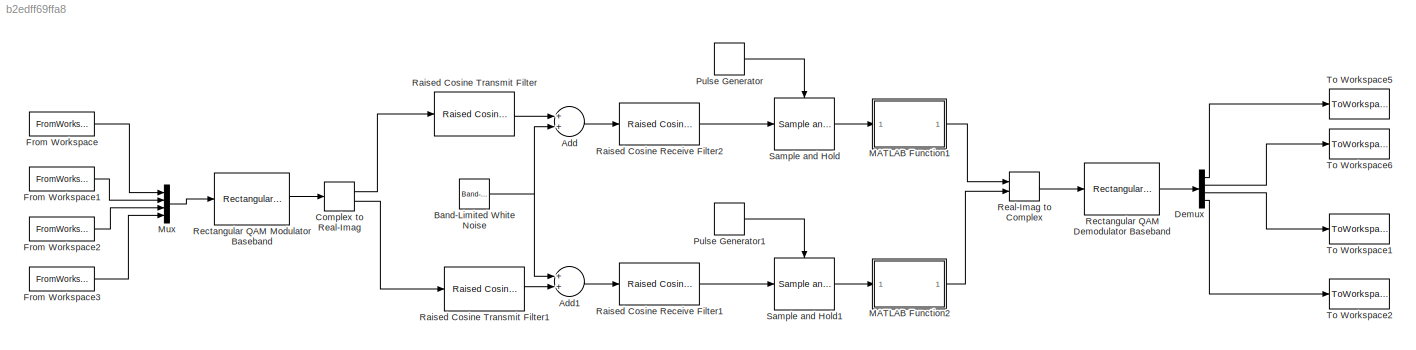
MODEL slx_b2edff69ffa8
KIND model
CONFIG AbsTol = auto
CONFIG EnableMultiTasking = off
CONFIG FixedStep = auto
CONFIG MaxStep = auto
CONFIG MinStep = auto
CONFIG RelTol = 1e-3
CONFIG SampleTimeConstraint = Unconstrained
CONFIG Solver = VariableStepAuto
CONFIG SolverName = VariableStepAuto
CONFIG StartTime = 0.0
CONFIG StopTime = 9600*Tb
BLOCK [Sum] Add
  InputSameDT = off
  OutDataTypeStr = Inherit: Inherit via internal rule
  Ports = [2, 1]
  SaturateOnIntegerOverflow = off
BLOCK [Sum] Add1
  InputSameDT = off
  OutDataTypeStr = Inherit: Inherit via internal rule
  Ports = [2, 1]
  SaturateOnIntegerOverflow = off
BLOCK [Reference] Band-Limited White Noise  REF=simulink/Sources/Band-Limited
White Noise
  Ports = [0, 1]
  SourceBlock = simulink/Sources/Band-Limited\nWhite Noise
  SourceProductBaseCode = SL
  SourceProductName = Simulink
  SourceType = Band-Limited White Noise.
BLOCK [ComplexToRealImag] Complex to Real-Imag
  Ports = [1, 2]
BLOCK [Demux] Demux
  DisplayOption = bar
  Ports = [1, 4]
BLOCK [FromWorkspace] From Workspace
  SampleTime = Tb
  VariableName = var1
  ZeroCross = on
BLOCK [FromWorkspace] From Workspace1
  SampleTime = Tb
  VariableName = var2
  ZeroCross = on
BLOCK [FromWorkspace] From Workspace2
  SampleTime = Tb
  VariableName = var3
  ZeroCross = on
BLOCK [FromWorkspace] From Workspace3
  SampleTime = Tb
  VariableName = var4
  ZeroCross = on
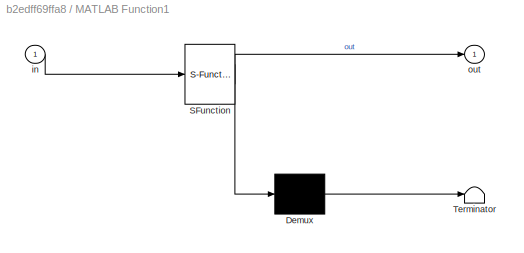
BLOCK [SubSystem] MATLAB Function1
  ErrorFcn = Stateflow.Translate.translate
  PermitHierarchicalResolution = ExplicitOnly
  Ports = [1, 1]
  RequestExecContextInheritance = off
  SFBlockType = MATLAB Function
  TreatAsAtomicUnit = on
  Variant = off
BLOCK [Demux] MATLAB Function1/ Demux 
  Outputs = 1
  Ports = [1, 1]
BLOCK [S-Function] MATLAB Function1/ SFunction 
  EnableBusSupport = on
  FunctionName = sf_sfun
  PortCounts = [1 2]
  Ports = [1, 2]
  SFcnIsStateOwnerBlock = off
  SFunctionDeploymentMode = off
  Tag = Stateflow S-Function QAM16 1
BLOCK [Terminator] MATLAB Function1/ Terminator 
BLOCK [Inport] MATLAB Function1/in
  IconDisplay = Port number
BLOCK [Outport] MATLAB Function1/out
  IconDisplay = Port number
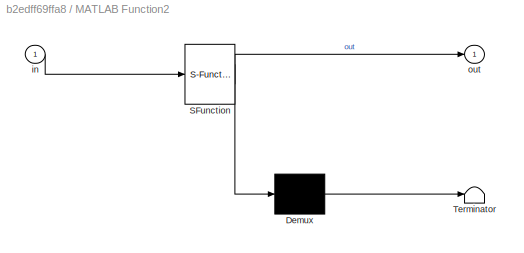
BLOCK [SubSystem] MATLAB Function2
  ErrorFcn = Stateflow.Translate.translate
  PermitHierarchicalResolution = ExplicitOnly
  Ports = [1, 1]
  RequestExecContextInheritance = off
  SFBlockType = MATLAB Function
  TreatAsAtomicUnit = on
  Variant = off
BLOCK [Demux] MATLAB Function2/ Demux 
  Outputs = 1
  Ports = [1, 1]
BLOCK [S-Function] MATLAB Function2/ SFunction 
  EnableBusSupport = on
  FunctionName = sf_sfun
  PortCounts = [1 2]
  Ports = [1, 2]
  SFcnIsStateOwnerBlock = off
  SFunctionDeploymentMode = off
  Tag = Stateflow S-Function QAM16 2
BLOCK [Terminator] MATLAB Function2/ Terminator 
BLOCK [Inport] MATLAB Function2/in
  IconDisplay = Port number
BLOCK [Outport] MATLAB Function2/out
  IconDisplay = Port number
BLOCK [Mux] Mux
  DisplayOption = bar
  Ports = [4, 1]
BLOCK [DiscretePulseGenerator] Pulse Generator
  Period = 4*Tb
  Ports = [0, 1]
  PulseType = Time based
  PulseWidth = 50
BLOCK [DiscretePulseGenerator] Pulse Generator1
  Period = 4*Tb
  Ports = [0, 1]
  PulseType = Time based
  PulseWidth = 50
BLOCK [Reference] Raised Cosine Receive Filter1  REF=commfilt2/Raised Cosine
Receive Filter
  Ports = [1, 1]
  SourceBlock = commfilt2/Raised Cosine\nReceive Filter
  SourceProductBaseCode = CM
  SourceProductName = Communications System Toolbox
  SourceType = Raised Cosine Receive Filter
BLOCK [Reference] Raised Cosine Receive Filter2  REF=commfilt2/Raised Cosine
Receive Filter
  Ports = [1, 1]
  SourceBlock = commfilt2/Raised Cosine\nReceive Filter
  SourceProductBaseCode = CM
  SourceProductName = Communications System Toolbox
  SourceType = Raised Cosine Receive Filter
BLOCK [Reference] Raised Cosine Transmit Filter  REF=commfilt2/Raised Cosine
Transmit Filter
  Ports = [1, 1]
  SourceBlock = commfilt2/Raised Cosine\nTransmit Filter
  SourceProductBaseCode = CM
  SourceProductName = Communications System Toolbox
  SourceType = Raised Cosine Transmit Filter
  UserDataPersistent = on
BLOCK [Reference] Raised Cosine Transmit Filter1  REF=commfilt2/Raised Cosine
Transmit Filter
  Ports = [1, 1]
  SourceBlock = commfilt2/Raised Cosine\nTransmit Filter
  SourceProductBaseCode = CM
  SourceProductName = Communications System Toolbox
  SourceType = Raised Cosine Transmit Filter
  UserDataPersistent = on
BLOCK [RealImagToComplex] Real-Imag to Complex
  Ports = [2, 1]
BLOCK [Reference] Rectangular QAM Demodulator Baseband  REF=commdigbbndam3/Rectangular QAM
Demodulator
Baseband
  Ports = [1, 1]
  SourceBlock = commdigbbndam3/Rectangular QAM\nDemodulator\nBaseband
  SourceProductBaseCode = CM
  SourceProductName = Communications System Toolbox
  SourceType = Rectangular QAM Demodulator Baseband
BLOCK [Reference] Rectangular QAM Modulator Baseband  REF=commdigbbndam3/Rectangular QAM
Modulator
Baseband
  Ports = [1, 1]
  SourceBlock = commdigbbndam3/Rectangular QAM\nModulator\nBaseband
  SourceProductBaseCode = CM
  SourceProductName = Communications System Toolbox
  SourceType = Rectangular QAM Modulator Baseband
BLOCK [Reference] Sample and Hold  REF=dspsigops/Sample
and Hold
  Ports = [1, 1, 0, 1]
  SourceBlock = dspsigops/Sample\nand Hold
  SourceProductBaseCode = DS
  SourceProductName = DSP System Toolbox
  SourceType = Sample and Hold
BLOCK [Reference] Sample and Hold1  REF=dspsigops/Sample
and Hold
  Ports = [1, 1, 0, 1]
  SourceBlock = dspsigops/Sample\nand Hold
  SourceProductBaseCode = DS
  SourceProductName = DSP System Toolbox
  SourceType = Sample and Hold
BLOCK [ToWorkspace] To Workspace1
  FixptAsFi = on
  MaxDataPoints = inf
  Ports = [1]
  SampleTime = Tb
  Save2DSignal = 2-D array (concatenate along first dimension)
  VariableName = sal3
BLOCK [ToWorkspace] To Workspace2
  FixptAsFi = on
  MaxDataPoints = inf
  Ports = [1]
  SampleTime = Tb
  Save2DSignal = 2-D array (concatenate along first dimension)
  VariableName = sal4
BLOCK [ToWorkspace] To Workspace5
  FixptAsFi = on
  MaxDataPoints = inf
  Ports = [1]
  SampleTime = Tb
  Save2DSignal = 2-D array (concatenate along first dimension)
  VariableName = sal1
BLOCK [ToWorkspace] To Workspace6
  FixptAsFi = on
  MaxDataPoints = inf
  Ports = [1]
  SampleTime = Tb
  Save2DSignal = 2-D array (concatenate along first dimension)
  VariableName = sal2
LINE Add1:1 -> Raised Cosine Receive Filter1:1
LINE Add:1 -> Raised Cosine Receive Filter2:1
NET Band-Limited White Noise:1 -> Add1:1, Add:2
LINE Complex to Real-Imag:1 -> Raised Cosine Transmit Filter:1
LINE Complex to Real-Imag:2 -> Raised Cosine Transmit Filter1:1
LINE Demux:1 -> To Workspace5:1
LINE Demux:2 -> To Workspace6:1
LINE Demux:3 -> To Workspace1:1
LINE Demux:4 -> To Workspace2:1
LINE From Workspace1:1 -> Mux:2
LINE From Workspace2:1 -> Mux:3
LINE From Workspace3:1 -> Mux:4
LINE From Workspace:1 -> Mux:1
LINE MATLAB Function1:1 -> Real-Imag to Complex:1
LINE MATLAB Function2:1 -> Real-Imag to Complex:2
LINE Mux:1 -> Rectangular QAM Modulator Baseband:1
LINE Pulse Generator1:1 -> Sample and Hold1:trigger
LINE Pulse Generator:1 -> Sample and Hold:trigger
LINE Raised Cosine Receive Filter1:1 -> Sample and Hold1:1
LINE Raised Cosine Receive Filter2:1 -> Sample and Hold:1
LINE Raised Cosine Transmit Filter1:1 -> Add1:2
LINE Raised Cosine Transmit Filter:1 -> Add:1
LINE Real-Imag to Complex:1 -> Rectangular QAM Demodulator Baseband:1
LINE Rectangular QAM Demodulator Baseband:1 -> Demux:1
LINE Rectangular QAM Modulator Baseband:1 -> Complex to Real-Imag:1
LINE Sample and Hold1:1 -> MATLAB Function2:1
LINE Sample and Hold:1 -> MATLAB Function1:1
note: NET lines group one-source signal fan-out (src -> all destinations, sorted); 1:1 wires keep LINE
CHART MATLAB Function1 states=1 transitions=1
  STATE_LABEL 'eML_blk_kernel()'
  STATE_LABEL "SCRIPT:\nfunction out   = DecisionReal(in)\nDisMin=200;\nout=zeros(size(in),'like',in);\n\nniv=1:4;\nniv(1)=-300;\nniv(2)=-100;\nniv(3)=100;\nniv(4)=300;\n\nif in < 0\n    if in < -200 \n    out=niv(1);\n    end\n    if in >= -200\n    out=niv(2);\n    end\nend\nif in >= 0\n    if in < 200 \n    out=niv(3);\n    end\n    if in >= 200\n    out=niv(4);\n    end\nend    \nend\n "
CHART MATLAB Function2 states=1 transitions=1
  STATE_LABEL 'eML_blk_kernel()'
  STATE_LABEL "SCRIPT:\nfunction out = DecisionIm(in)\n\nout=zeros(size(in),'like',in);\n\nniv=1:4;\nniv(1)=-real(1*exp(j*pi/8));\nniv(2)=-real(1*exp(j*3*pi/8));\nniv(3)=real(1*exp(j*3*pi/8));\nniv(4)=real(1*exp(j*pi/8));\n\nif in < 0\n    if angle(in) < -0.6533\n    out=niv(1);\n    end\n    if in >= -0.6533\n    out=niv(2);\n    end\nend\nif in >= 0\n    if in < 0.6533 \n    out=niv(3);\n    end\n    if in >= -0.6533\n    out=niv(4);...<+20ch>"
